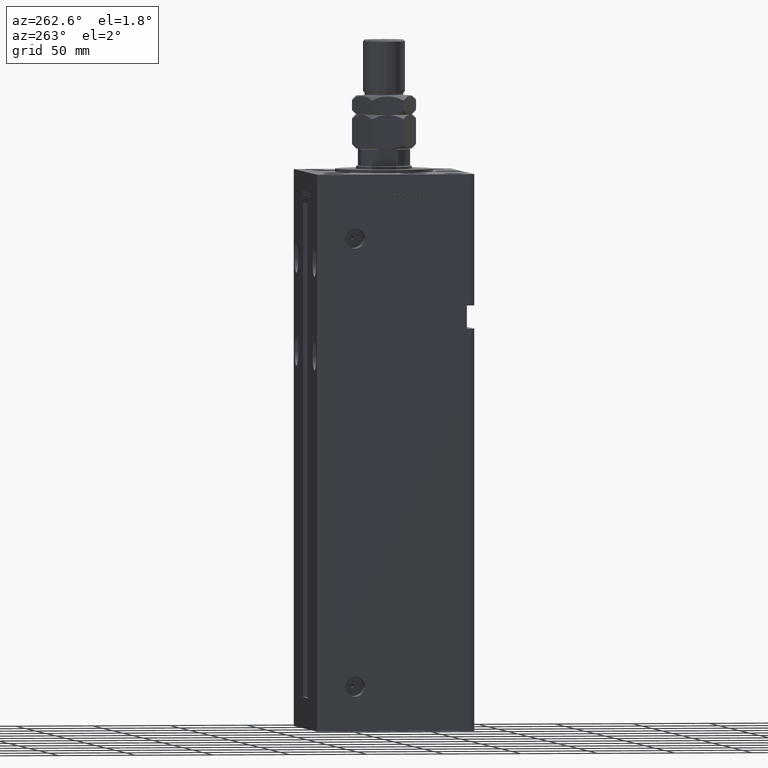
[diagram: clean part render]
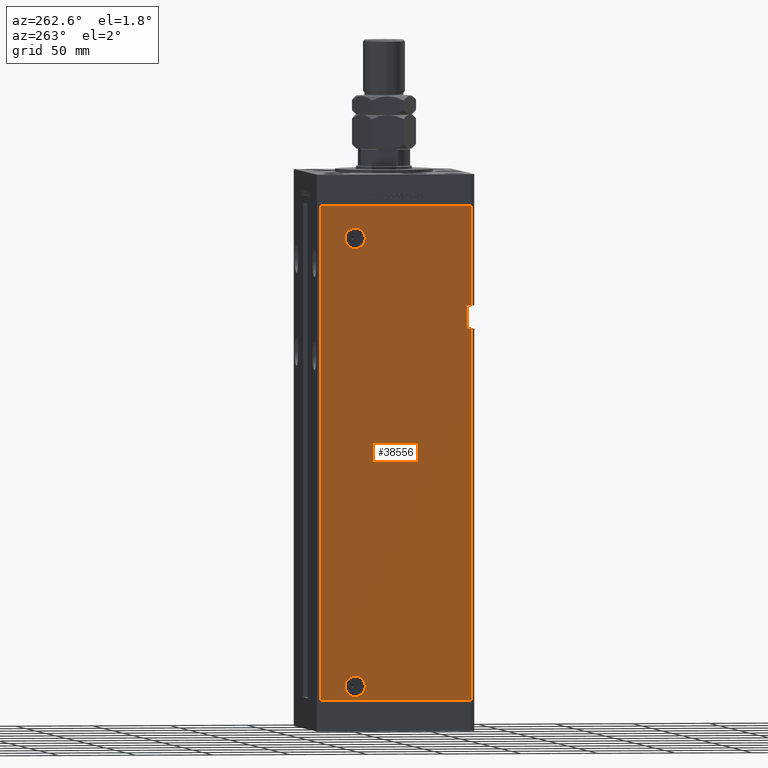
[diagram: same view with one face highlighted and labeled with its STEP entity id]
A machine part, auxiliary view. The second image highlights one B-rep face of the part: STEP entity #38556.
In plain terms, the highlighted planar face has unit normal (1, 0, 0).
Its self-contained STEP definition (entity closure, byte-faithful):
#541 = LINE ( 'NONE', #21312, #15892 ) ;
#585 = CARTESIAN_POINT ( 'NONE',  ( -60.00000000000001421, 49.00000000000000000, 318.5000000000000000 ) ) ;
#691 = EDGE_CURVE ( 'NONE', #42777, #5831, #28931, .T. ) ;
#2327 = DIRECTION ( 'NONE',  ( 2.832201593431522219E-16, -1.000000000000000000, 0.000000000000000000 ) ) ;
#2602 = VECTOR ( 'NONE', #2327, 1000.000000000000000 ) ;
#3281 = DIRECTION ( 'NONE',  ( -0.000000000000000000, -1.000000000000000000, -0.000000000000000000 ) ) ;
#3437 = VECTOR ( 'NONE', #3281, 1000.000000000000000 ) ;
#3555 = EDGE_CURVE ( 'NONE', #18433, #43978, #29122, .T. ) ;
#3678 = ORIENTED_EDGE ( 'NONE', *, *, #14213, .T. ) ;
#3746 = CARTESIAN_POINT ( 'NONE',  ( -59.99999999999998579, -45.99999999999999289, 254.0000000000000568 ) ) ;
#3803 = VERTEX_POINT ( 'NONE', #10214 ) ;
#4392 = CARTESIAN_POINT ( 'NONE',  ( -60.00000000000000711, 33.07999999999999829, 9.000000000000007105 ) ) ;
#4896 = DIRECTION ( 'NONE',  ( 0.000000000000000000, -1.000000000000000000, 0.000000000000000000 ) ) ;
#5200 = EDGE_CURVE ( 'NONE', #33387, #13424, #28357, .T. ) ;
#5227 = AXIS2_PLACEMENT_3D ( 'NONE', #16918, #38205, #28577 ) ;
#5831 = VERTEX_POINT ( 'NONE', #48094 ) ;
#6503 = DIRECTION ( 'NONE',  ( 1.000000000000000000, 2.832201593431522219E-16, -0.000000000000000000 ) ) ;
#6776 = FACE_BOUND ( 'NONE', #33704, .T. ) ;
#8016 = VECTOR ( 'NONE', #24785, 1000.000000000000000 ) ;
#8380 = VERTEX_POINT ( 'NONE', #45124 ) ;
#9207 = DIRECTION ( 'NONE',  ( -0.000000000000000000, -1.000000000000000000, -0.000000000000000000 ) ) ;
#10214 = CARTESIAN_POINT ( 'NONE',  ( -60.00000000000001421, 49.00000000000000000, 0.000000000000000000 ) ) ;
#10267 = VERTEX_POINT ( 'NONE', #47366 ) ;
#10332 = ORIENTED_EDGE ( 'NONE', *, *, #49671, .F. ) ;
#11251 = CARTESIAN_POINT ( 'NONE',  ( -60.00000000000000711, 19.91999999999995552, 297.5000000000000000 ) ) ;
#11575 = VECTOR ( 'NONE', #18518, 1000.000000000000000 ) ;
#12581 = CIRCLE ( 'NONE', #54146, 6.580000000000002736 ) ;
#13126 = ORIENTED_EDGE ( 'NONE', *, *, #35050, .F. ) ;
#13424 = VERTEX_POINT ( 'NONE', #39675 ) ;
#14213 = EDGE_CURVE ( 'NONE', #33387, #3803, #48832, .T. ) ;
#14509 = CARTESIAN_POINT ( 'NONE',  ( -60.00000000000001421, 49.00000000000000000, 318.5000000000000000 ) ) ;
#15201 = CIRCLE ( 'NONE', #19596, 6.580000000000002736 ) ;
#15892 = VECTOR ( 'NONE', #26019, 1000.000000000000000 ) ;
#16918 = CARTESIAN_POINT ( 'NONE',  ( -60.00000000000000711, 26.50000000000000000, 297.5000000000000000 ) ) ;
#18433 = VERTEX_POINT ( 'NONE', #39911 ) ;
#18518 = DIRECTION ( 'NONE',  ( -0.000000000000000000, -0.000000000000000000, -1.000000000000000000 ) ) ;
#18844 = VERTEX_POINT ( 'NONE', #34533 ) ;
#18964 = DIRECTION ( 'NONE',  ( -2.832201593431522219E-16, 1.000000000000000000, 0.000000000000000000 ) ) ;
#19596 = AXIS2_PLACEMENT_3D ( 'NONE', #21246, #34785, #4896 ) ;
#19630 = CARTESIAN_POINT ( 'NONE',  ( -59.99999999999998579, -48.99999999999998579, 318.5000000000000000 ) ) ;
#19649 = VERTEX_POINT ( 'NONE', #4392 ) ;
#20324 = CARTESIAN_POINT ( 'NONE',  ( -60.00000000000001421, 49.00000000000000000, 318.5000000000000000 ) ) ;
#21142 = ORIENTED_EDGE ( 'NONE', *, *, #3555, .F. ) ;
#21246 = CARTESIAN_POINT ( 'NONE',  ( -60.00000000000000711, 26.50000000000000000, 9.000000000000007105 ) ) ;
#21312 = CARTESIAN_POINT ( 'NONE',  ( -59.99999999999998579, -48.99999999999998579, 318.5000000000000000 ) ) ;
#22765 = VERTEX_POINT ( 'NONE', #34584 ) ;
#23049 = ORIENTED_EDGE ( 'NONE', *, *, #24917, .F. ) ;
#23680 = CARTESIAN_POINT ( 'NONE',  ( -60.00000000000001421, 49.00000000000000000, 318.5000000000000000 ) ) ;
#24785 = DIRECTION ( 'NONE',  ( 2.832201593431522219E-16, -1.000000000000000000, 0.000000000000000000 ) ) ;
#24917 = EDGE_CURVE ( 'NONE', #22765, #18844, #541, .T. ) ;
#26019 = DIRECTION ( 'NONE',  ( -0.000000000000000000, -0.000000000000000000, -1.000000000000000000 ) ) ;
#26519 = ORIENTED_EDGE ( 'NONE', *, *, #691, .F. ) ;
#26580 = ORIENTED_EDGE ( 'NONE', *, *, #43327, .F. ) ;
#27248 = VECTOR ( 'NONE', #32818, 1000.000000000000000 ) ;
#27915 = EDGE_CURVE ( 'NONE', #42777, #10267, #35666, .T. ) ;
#28085 = ORIENTED_EDGE ( 'NONE', *, *, #5200, .F. ) ;
#28357 = LINE ( 'NONE', #14509, #2602 ) ;
#28577 = DIRECTION ( 'NONE',  ( 0.000000000000000000, -1.000000000000000000, 0.000000000000000000 ) ) ;
#28931 = LINE ( 'NONE', #3746, #27248 ) ;
#29122 = CIRCLE ( 'NONE', #5227, 6.580000000000044480 ) ;
#31985 = EDGE_LOOP ( 'NONE', ( #23049, #10332, #26519, #32922, #35269, #28085, #3678, #49167 ) ) ;
#32095 = LINE ( 'NONE', #19630, #11575 ) ;
#32304 = DIRECTION ( 'NONE',  ( -1.000000000000000000, -2.275047181608927644E-16, 0.000000000000000000 ) ) ;
#32818 = DIRECTION ( 'NONE',  ( 0.000000000000000000, 0.000000000000000000, -1.000000000000000000 ) ) ;
#32922 = ORIENTED_EDGE ( 'NONE', *, *, #27915, .T. ) ;
#33387 = VERTEX_POINT ( 'NONE', #585 ) ;
#33704 = EDGE_LOOP ( 'NONE', ( #13126, #45636 ) ) ;
#33870 = DIRECTION ( 'NONE',  ( 0.000000000000000000, -1.000000000000000000, 0.000000000000000000 ) ) ;
#34533 = CARTESIAN_POINT ( 'NONE',  ( -59.99999999999998579, -48.99999999999998579, 0.000000000000000000 ) ) ;
#34584 = CARTESIAN_POINT ( 'NONE',  ( -59.99999999999998579, -48.99999999999998579, 239.0000000000000568 ) ) ;
#34766 = CARTESIAN_POINT ( 'NONE',  ( -59.99999999999998579, -45.99999999999999289, 254.0000000000000568 ) ) ;
#34785 = DIRECTION ( 'NONE',  ( -1.000000000000000000, -2.275047181608927644E-16, 0.000000000000000000 ) ) ;
#34953 = VECTOR ( 'NONE', #49107, 1000.000000000000000 ) ;
#35050 = EDGE_CURVE ( 'NONE', #8380, #19649, #15201, .T. ) ;
#35269 = ORIENTED_EDGE ( 'NONE', *, *, #50064, .F. ) ;
#35666 = LINE ( 'NONE', #52522, #3437 ) ;
#36118 = PLANE ( 'NONE',  #51521 ) ;
#37661 = EDGE_CURVE ( 'NONE', #19649, #8380, #12581, .T. ) ;
#38205 = DIRECTION ( 'NONE',  ( -1.000000000000000000, -2.275047181608927644E-16, 0.000000000000000000 ) ) ;
#38273 = DIRECTION ( 'NONE',  ( -1.000000000000000000, -2.275047181608927644E-16, 0.000000000000000000 ) ) ;
#38556 = ADVANCED_FACE ( 'NONE', ( #53267, #6776, #44413 ), #36118, .F. ) ;
#39675 = CARTESIAN_POINT ( 'NONE',  ( -59.99999999999998579, -48.99999999999998579, 318.5000000000000000 ) ) ;
#39911 = CARTESIAN_POINT ( 'NONE',  ( -60.00000000000000711, 33.08000000000004093, 297.5000000000000000 ) ) ;
#40009 = LINE ( 'NONE', #42192, #8016 ) ;
#41142 = CARTESIAN_POINT ( 'NONE',  ( -60.00000000000000711, 26.50000000000000000, 9.000000000000007105 ) ) ;
#41896 = CARTESIAN_POINT ( 'NONE',  ( -60.00000000000000711, 26.50000000000000000, 297.5000000000000000 ) ) ;
#42192 = CARTESIAN_POINT ( 'NONE',  ( -60.00000000000001421, 49.00000000000000000, 0.000000000000000000 ) ) ;
#42777 = VERTEX_POINT ( 'NONE', #34766 ) ;
#43327 = EDGE_CURVE ( 'NONE', #43978, #18433, #46247, .T. ) ;
#43496 = CARTESIAN_POINT ( 'NONE',  ( -59.99999999999998579, -45.99999999999999289, 239.0000000000000568 ) ) ;
#43978 = VERTEX_POINT ( 'NONE', #11251 ) ;
#44413 = FACE_BOUND ( 'NONE', #48021, .T. ) ;
#45124 = CARTESIAN_POINT ( 'NONE',  ( -60.00000000000000711, 19.91999999999999815, 9.000000000000007105 ) ) ;
#45636 = ORIENTED_EDGE ( 'NONE', *, *, #37661, .F. ) ;
#46247 = CIRCLE ( 'NONE', #47142, 6.580000000000044480 ) ;
#47142 = AXIS2_PLACEMENT_3D ( 'NONE', #41896, #38273, #33870 ) ;
#47366 = CARTESIAN_POINT ( 'NONE',  ( -59.99999999999998579, -48.99999999999998579, 254.0000000000000568 ) ) ;
#47783 = VECTOR ( 'NONE', #9207, 1000.000000000000000 ) ;
#48021 = EDGE_LOOP ( 'NONE', ( #26580, #21142 ) ) ;
#48094 = CARTESIAN_POINT ( 'NONE',  ( -59.99999999999998579, -45.99999999999999289, 239.0000000000000568 ) ) ;
#48522 = EDGE_CURVE ( 'NONE', #3803, #18844, #40009, .T. ) ;
#48832 = LINE ( 'NONE', #20324, #34953 ) ;
#49107 = DIRECTION ( 'NONE',  ( -0.000000000000000000, -0.000000000000000000, -1.000000000000000000 ) ) ;
#49167 = ORIENTED_EDGE ( 'NONE', *, *, #48522, .T. ) ;
#49168 = DIRECTION ( 'NONE',  ( 0.000000000000000000, -1.000000000000000000, 0.000000000000000000 ) ) ;
#49671 = EDGE_CURVE ( 'NONE', #5831, #22765, #52332, .T. ) ;
#50064 = EDGE_CURVE ( 'NONE', #13424, #10267, #32095, .T. ) ;
#51521 = AXIS2_PLACEMENT_3D ( 'NONE', #23680, #6503, #18964 ) ;
#52332 = LINE ( 'NONE', #43496, #47783 ) ;
#52522 = CARTESIAN_POINT ( 'NONE',  ( -59.99999999999998579, -45.99999999999999289, 254.0000000000000568 ) ) ;
#53267 = FACE_OUTER_BOUND ( 'NONE', #31985, .T. ) ;
#54146 = AXIS2_PLACEMENT_3D ( 'NONE', #41142, #32304, #49168 ) ;